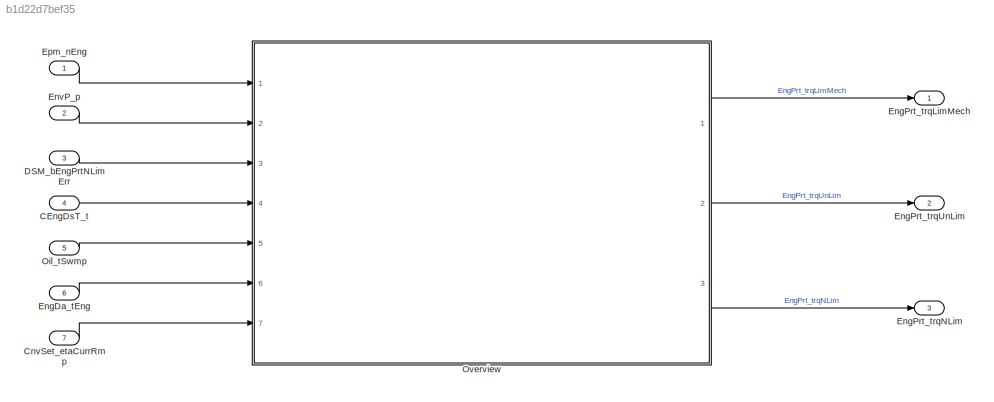
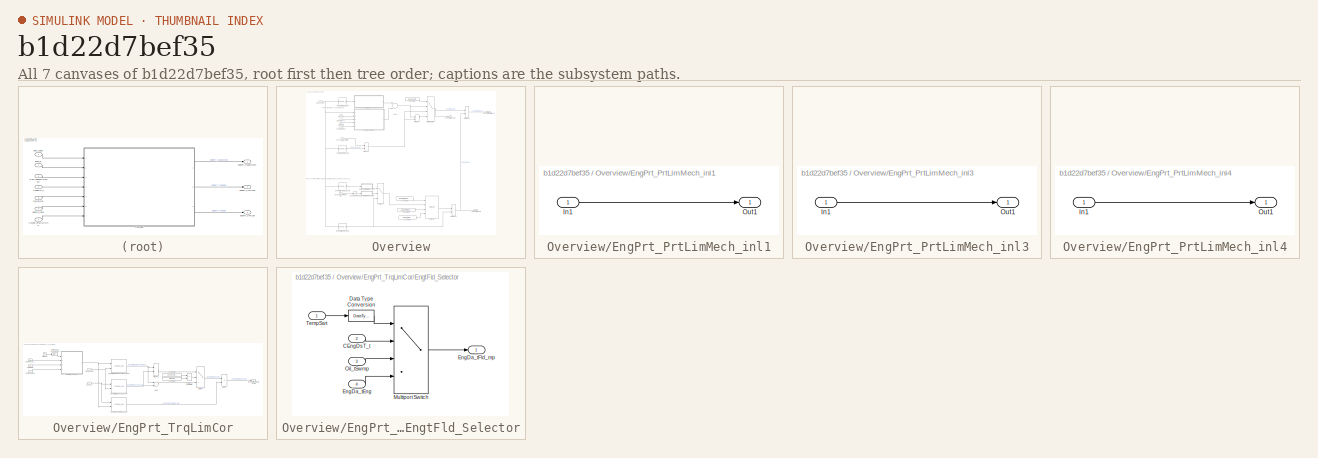
[diagram: thumbnail index - all 7 canvases of the model, root first then tree order]
MODEL slx_b1d22d7bef35
KIND model
CONFIG AbsTol = auto
CONFIG EnableMultiTasking = off
CONFIG FixedStep = 0.001
CONFIG MaxStep = auto
CONFIG MinStep = auto
CONFIG RelTol = 1e-3
CONFIG SampleTimeConstraint = Unconstrained
CONFIG Solver = FixedStepDiscrete
CONFIG SolverName = FixedStepDiscrete
CONFIG StartTime = 0.0
CONFIG StopTime = Inf
WORKSPACE source: MAT-file member
WORKSPACE EngPrt_PrtLimMech_DT = 10
BLOCK [Inport] CEngDsT_t
  Description = engine coolant temperature after filter
  IconDisplay = Port number
  OutDataTypeStr = Temp_C
  OutMax = 200
  OutMin = -200
  Port = 4
  PortDimensions = [1 1]
  Unit = deg
BLOCK [Inport] CnvSet_etaCurrRmp
  Description = Conversion efficiency corresponding to CnvSet_qSet
  IconDisplay = Port number
  OutDataTypeStr = Effcy
  OutMax = 100
  OutMin = 0
  Port = 7
  PortDimensions = [1 1]
  Unit = Nm/(mg/hub)
BLOCK [Inport] DSM_bEngPrtNLimErr
  Description = Activation of additional engine speed limitation
  IconDisplay = Port number
  OutDataTypeStr = boolean
  OutMax = 1
  OutMin = 0
  Port = 3
  PortDimensions = [1 1]
BLOCK [Inport] EngDa_tEng
  Description = Engine temperature
  IconDisplay = Port number
  OutDataTypeStr = Temp_C
  OutMax = 1000
  OutMin = -1000
  Port = 6
  PortDimensions = [1 1]
  Unit = deg
BLOCK [Outport] EngPrt_trqLimMech
  IconDisplay = Port number
BLOCK [Outport] EngPrt_trqNLim
  IconDisplay = Port number
  Port = 3
BLOCK [Outport] EngPrt_trqUnLim
  IconDisplay = Port number
  Port = 2
BLOCK [Inport] EnvP_p
  Description = Barometric pressure
  IconDisplay = Port number
  OutDataTypeStr = Press_kpa
  OutMax = 300
  OutMin = 0
  Port = 2
  PortDimensions = [1 1]
  Unit = kPa
BLOCK [Inport] Epm_nEng
  Description = Engine speed
  IconDisplay = Port number
  OutDataTypeStr = ERPM
  OutMax = 6000
  OutMin = 0
  PortDimensions = [1 1]
  Unit = rpm
BLOCK [Inport] Oil_tSwmp
  Description = Oil temperature in oil sump
  IconDisplay = Port number
  OutDataTypeStr = Temp_C
  OutMax = 200
  OutMin = -50
  Port = 5
  PortDimensions = [1 1]
  Unit = deg
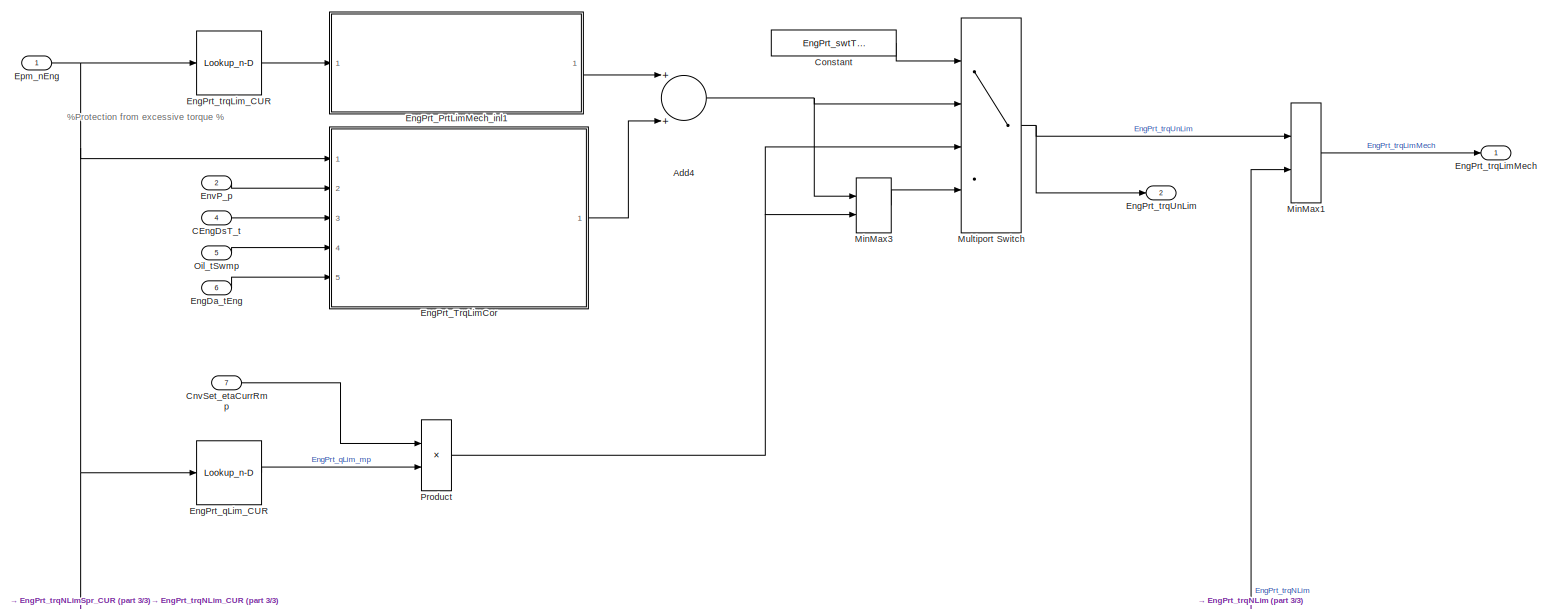
[diagram: Overview - part 1/3, full width, top band]
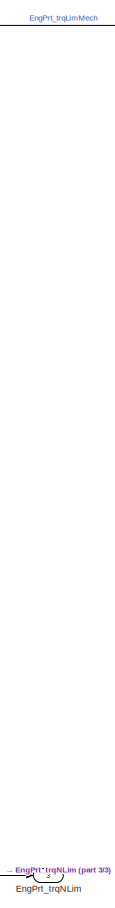
[diagram: Overview - part 2/3, right side, full height]
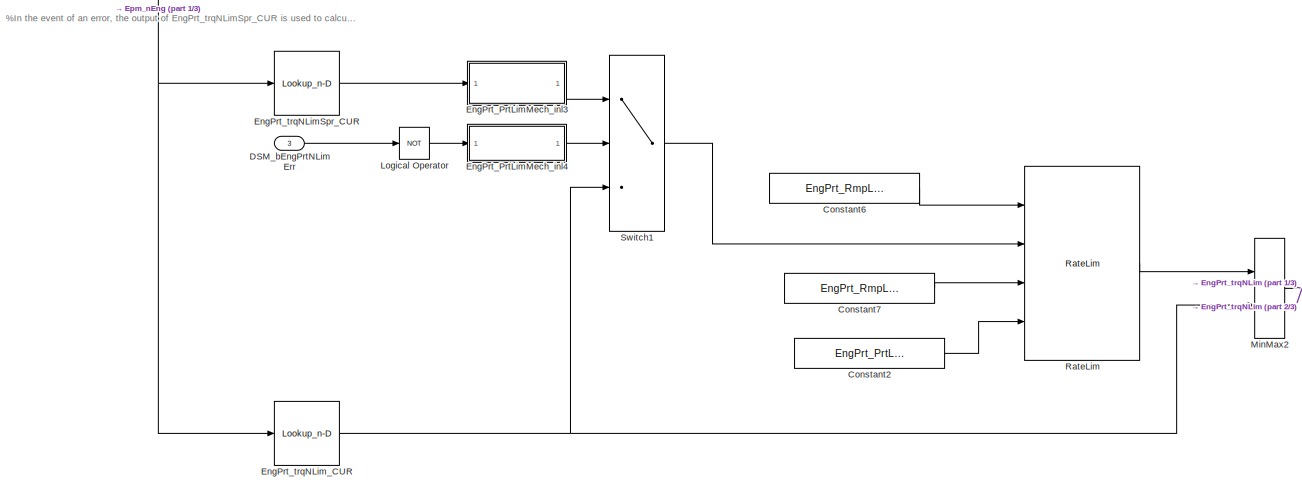
[diagram: Overview - part 3/3, full width, bottom band]
BLOCK [SubSystem] Overview
  Ports = [7, 3]
  RequestExecContextInheritance = off
BLOCK [Sum] Overview/Add4
  OutDataTypeStr = Inherit: Inherit via internal rule
  Ports = [2, 1]
  SaturateOnIntegerOverflow = off
BLOCK [Inport] Overview/CEngDsT_t
  IconDisplay = Port number
  Port = 4
  Tag = deg
BLOCK [Inport] Overview/CnvSet_etaCurrRmp
  IconDisplay = Port number
  Port = 7
  Tag = Nm/(mg/hub)
BLOCK [Constant] Overview/Constant
  Value = EngPrt_swtTrq_C
BLOCK [Constant] Overview/Constant2
  OutDataTypeStr = Inherit: Inherit via back propagation
  Value = EngPrt_PrtLimMech_DT
BLOCK [Constant] Overview/Constant6
  Value = EngPrt_RmpLimNErrPos_C
BLOCK [Constant] Overview/Constant7
  Value = EngPrt_RmpLimNErrNeg_C
BLOCK [Inport] Overview/DSM_bEngPrtNLimErr
  IconDisplay = Port number
  Port = 3
BLOCK [Inport] Overview/EngDa_tEng
  IconDisplay = Port number
  Port = 6
  Tag = deg
BLOCK [SubSystem] Overview/EngPrt_PrtLimMech_inl1
  Ports = [1, 1]
  RequestExecContextInheritance = off
BLOCK [Inport] Overview/EngPrt_PrtLimMech_inl1/In1
  IconDisplay = Port number
BLOCK [Outport] Overview/EngPrt_PrtLimMech_inl1/Out1
  IconDisplay = Port number
BLOCK [SubSystem] Overview/EngPrt_PrtLimMech_inl3
  Ports = [1, 1]
  RequestExecContextInheritance = off
BLOCK [Inport] Overview/EngPrt_PrtLimMech_inl3/In1
  IconDisplay = Port number
BLOCK [Outport] Overview/EngPrt_PrtLimMech_inl3/Out1
  IconDisplay = Port number
BLOCK [SubSystem] Overview/EngPrt_PrtLimMech_inl4
  Ports = [1, 1]
  RequestExecContextInheritance = off
BLOCK [Inport] Overview/EngPrt_PrtLimMech_inl4/In1
  IconDisplay = Port number
BLOCK [Outport] Overview/EngPrt_PrtLimMech_inl4/Out1
  IconDisplay = Port number
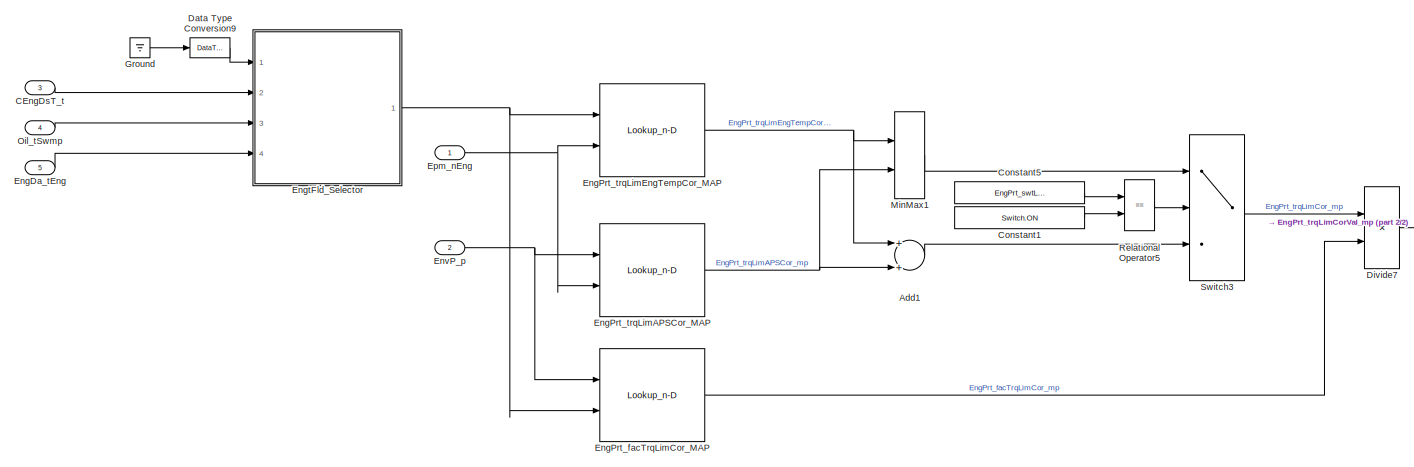
[diagram: Overview/EngPrt_TrqLimCor - part 1/2, most of the canvas]
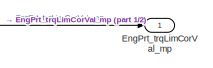
[diagram: Overview/EngPrt_TrqLimCor - part 2/2, middle right region]
BLOCK [SubSystem] Overview/EngPrt_TrqLimCor
  Ports = [5, 1]
  RequestExecContextInheritance = off
BLOCK [Sum] Overview/EngPrt_TrqLimCor/Add1
  OutDataTypeStr = Inherit: Inherit via internal rule
  Ports = [2, 1]
  SaturateOnIntegerOverflow = off
BLOCK [Inport] Overview/EngPrt_TrqLimCor/CEngDsT_t
  IconDisplay = Port number
  Port = 3
  Tag = deg
BLOCK [Constant] Overview/EngPrt_TrqLimCor/Constant1
  OutDataTypeStr = Inherit: Inherit via back propagation
  Value = Switch.ON
BLOCK [Constant] Overview/EngPrt_TrqLimCor/Constant5
  Value = EngPrt_swtLimCorType_C
BLOCK [DataTypeConversion] Overview/EngPrt_TrqLimCor/Data Type Conversion9
  OutDataTypeStr = uint8
  RndMeth = Floor
  SaturateOnIntegerOverflow = off
BLOCK [Product] Overview/EngPrt_TrqLimCor/Divide7
  InputSameDT = off
  Inputs = **
  OutDataTypeStr = Inherit: Inherit via back propagation
  Ports = [2, 1]
  RndMeth = Floor
  SaturateOnIntegerOverflow = off
BLOCK [Inport] Overview/EngPrt_TrqLimCor/EngDa_tEng
  IconDisplay = Port number
  Port = 5
  Tag = deg
BLOCK [Lookup_n-D] Overview/EngPrt_TrqLimCor/EngPrt_facTrqLimCor_MAP
  BeginIndexSearchUsingPreviousIndexResult = on
  BreakpointsForDimension1 = EngPrt_facTrqLimCor_MAPY
  BreakpointsForDimension1DataTypeStr = Inherit: Inherit from 'Breakpoint data'
  BreakpointsForDimension2 = EngPrt_facTrqLimCor_MAPX
  BreakpointsForDimension2DataTypeStr = Inherit: Inherit from 'Breakpoint data'
  DialogController = Simulink.DDGSource
  ExtrapMethod = Clip
  InputSameDT = off
  InternalRulePriority = Speed
  OutDataTypeStr = Inherit: Inherit from 'Table data'
  Ports = [2, 1]
  SaturateOnIntegerOverflow = on
  Table = EngPrt_facTrqLimCor_MAP
  TableDataTypeStr = Inherit: Inherit from 'Table data'
  UseLastTableValue = on
BLOCK [Lookup_n-D] Overview/EngPrt_TrqLimCor/EngPrt_trqLimAPSCor_MAP
  BeginIndexSearchUsingPreviousIndexResult = on
  BreakpointsForDimension1 = EngPrt_trqLimAPSCor_MAPY
  BreakpointsForDimension2 = EngPrt_trqLimAPSCor_MAPX
  DialogController = Simulink.DDGSource
  ExtrapMethod = Clip
  IndexSearchMethod = Linear search
  InputSameDT = off
  InternalRulePriority = Speed
  OutDataTypeStr = Inherit: Inherit via back propagation
  Ports = [2, 1]
  SaturateOnIntegerOverflow = on
  Table = EngPrt_trqLimAPSCor_MAP
  UseLastTableValue = on
BLOCK [Outport] Overview/EngPrt_TrqLimCor/EngPrt_trqLimCorVal_mp
  IconDisplay = Port number
BLOCK [Lookup_n-D] Overview/EngPrt_TrqLimCor/EngPrt_trqLimEngTempCor_MAP
  BeginIndexSearchUsingPreviousIndexResult = on
  BreakpointsForDimension1 = EngPrt_trqLimEngTempCor_MAPY
  BreakpointsForDimension2 = EngPrt_trqLimEngTempCor_MAPX
  DialogController = Simulink.DDGSource
  ExtrapMethod = Clip
  IndexSearchMethod = Linear search
  InputSameDT = off
  InternalRulePriority = Speed
  OutDataTypeStr = Inherit: Inherit via back propagation
  Ports = [2, 1]
  SaturateOnIntegerOverflow = on
  Table = EngPrt_trqLimEngTempCor_MAP
  UseLastTableValue = on
BLOCK [SubSystem] Overview/EngPrt_TrqLimCor/EngtFld_Selector
  Ports = [4, 1]
  RequestExecContextInheritance = off
BLOCK [Inport] Overview/EngPrt_TrqLimCor/EngtFld_Selector/CEngDsT_t
  IconDisplay = Port number
  Port = 2
  Tag = deg
BLOCK [DataTypeConversion] Overview/EngPrt_TrqLimCor/EngtFld_Selector/Data Type Conversion
  OutDataTypeStr = uint8
  RndMeth = Floor
  SaturateOnIntegerOverflow = off
BLOCK [Inport] Overview/EngPrt_TrqLimCor/EngtFld_Selector/EngDa_tEng
  IconDisplay = Port number
  Port = 4
  Tag = deg
BLOCK [Outport] Overview/EngPrt_TrqLimCor/EngtFld_Selector/EngDa_tFld_mp
  IconDisplay = Port number
  Tag = deg
BLOCK [MultiPortSwitch] Overview/EngPrt_TrqLimCor/EngtFld_Selector/Multiport Switch
  DataPortOrder = Zero-based contiguous
  InputSameDT = off
  Ports = [4, 1]
  SaturateOnIntegerOverflow = off
  zeroidx = on
BLOCK [Inport] Overview/EngPrt_TrqLimCor/EngtFld_Selector/Oil_tSwmp
  IconDisplay = Port number
  Port = 3
  Tag = deg
BLOCK [Inport] Overview/EngPrt_TrqLimCor/EngtFld_Selector/TempSwt
  IconDisplay = Port number
BLOCK [Inport] Overview/EngPrt_TrqLimCor/EnvP_p
  IconDisplay = Port number
  Port = 2
BLOCK [Inport] Overview/EngPrt_TrqLimCor/Epm_nEng
  IconDisplay = Port number
BLOCK [Ground] Overview/EngPrt_TrqLimCor/Ground
BLOCK [MinMax] Overview/EngPrt_TrqLimCor/MinMax1
  Function = max
  Inputs = 2
  Ports = [2, 1]
  SaturateOnIntegerOverflow = off
BLOCK [Inport] Overview/EngPrt_TrqLimCor/Oil_tSwmp
  IconDisplay = Port number
  Port = 4
  Tag = deg
BLOCK [RelationalOperator] Overview/EngPrt_TrqLimCor/Relational Operator5
  Operator = ==
  OutDataTypeStr = boolean
  Ports = [2, 1]
  RndMeth = Simplest
BLOCK [Switch] Overview/EngPrt_TrqLimCor/Switch3
  Criteria = u2 ~= 0
  SaturateOnIntegerOverflow = off
BLOCK [Lookup_n-D] Overview/EngPrt_qLim_CUR
  BreakpointsForDimension1 = EngPrt_qLim_CURX
  BreakpointsForDimension2 = [1:3]
  ExtrapMethod = Clip
  IndexSearchMethod = Linear search
  InputSameDT = off
  InternalRulePriority = Speed
  NumberOfTableDimensions = 1
  OutDataTypeStr = Inherit: Inherit via back propagation
  Ports = [1, 1]
  RndMeth = Simplest
  SaturateOnIntegerOverflow = on
  Table = EngPrt_qLim_CUR
BLOCK [Outport] Overview/EngPrt_trqLimMech
  IconDisplay = Port number
  Tag = Nm
BLOCK [Lookup_n-D] Overview/EngPrt_trqLim_CUR
  BreakpointsForDimension1 = EngPrt_trqLim_CURX
  BreakpointsForDimension2 = [1:3]
  ExtrapMethod = Clip
  IndexSearchMethod = Linear search
  InputSameDT = off
  InternalRulePriority = Speed
  NumberOfTableDimensions = 1
  OutDataTypeStr = Inherit: Inherit via back propagation
  Ports = [1, 1]
  RndMeth = Simplest
  SaturateOnIntegerOverflow = on
  Table = EngPrt_trqLim_CUR
BLOCK [Outport] Overview/EngPrt_trqNLim
  IconDisplay = Port number
  Port = 3
  Tag = Nm
BLOCK [Lookup_n-D] Overview/EngPrt_trqNLimSpr_CUR
  BreakpointsForDimension1 = EngPrt_trqNLimSpr_CURX
  BreakpointsForDimension2 = [1:3]
  ExtrapMethod = Clip
  IndexSearchMethod = Linear search
  InputSameDT = off
  InternalRulePriority = Speed
  NumberOfTableDimensions = 1
  OutDataTypeStr = Inherit: Inherit via back propagation
  Ports = [1, 1]
  RndMeth = Simplest
  SaturateOnIntegerOverflow = on
  Table = EngPrt_trqNLimSpr_CUR
BLOCK [Lookup_n-D] Overview/EngPrt_trqNLim_CUR
  BreakpointsForDimension1 = EngPrt_trqNLim_CURX
  BreakpointsForDimension2 = [1:3]
  ExtrapMethod = Clip
  IndexSearchMethod = Linear search
  InputSameDT = off
  InternalRulePriority = Speed
  NumberOfTableDimensions = 1
  OutDataTypeStr = Inherit: Inherit via back propagation
  Ports = [1, 1]
  RndMeth = Simplest
  SaturateOnIntegerOverflow = on
  Table = EngPrt_trqNLim_CUR
BLOCK [Outport] Overview/EngPrt_trqUnLim
  IconDisplay = Port number
  Port = 2
  Tag = Nm
BLOCK [Inport] Overview/EnvP_p
  IconDisplay = Port number
  Port = 2
  Tag = kPa
BLOCK [Inport] Overview/Epm_nEng
  IconDisplay = Port number
  Tag = rpm
BLOCK [Logic] Overview/Logical Operator
  AllPortsSameDT = off
  Operator = NOT
  OutDataTypeStr = boolean
  Ports = [1, 1]
BLOCK [MinMax] Overview/MinMax1
  Inputs = 2
  Ports = [2, 1]
  SaturateOnIntegerOverflow = off
BLOCK [MinMax] Overview/MinMax2
  Inputs = 2
  Ports = [2, 1]
  SaturateOnIntegerOverflow = off
BLOCK [MinMax] Overview/MinMax3
  Inputs = 2
  Ports = [2, 1]
  SaturateOnIntegerOverflow = off
BLOCK [MultiPortSwitch] Overview/Multiport Switch
  DataPortOrder = Zero-based contiguous
  OutDataTypeStr = Inherit: Inherit via back propagation
  Ports = [4, 1]
  SaturateOnIntegerOverflow = off
  zeroidx = on
BLOCK [Inport] Overview/Oil_tSwmp
  IconDisplay = Port number
  Port = 5
  Tag = deg
BLOCK [Product] Overview/Product
  InputSameDT = off
  OutDataTypeStr = Inherit: Inherit via back propagation
  Ports = [2, 1]
  RndMeth = Floor
BLOCK [Reference] Overview/RateLim  REF=sllib/RateLim  (lib defined in slx_2b0aa6d284ff)
  Ports = [4, 1]
  SourceBlock = sllib/RateLim
  SourceProductName = sllib
  SourceType = RateLim
BLOCK [Switch] Overview/Switch1
  Criteria = u2 ~= 0
  SaturateOnIntegerOverflow = off
ANNOTATION Overview: %In the event of an error, the output of EngPrt_trqNLimSpr_CUR is used to calculate EngPrt_trqNLim. %
ANNOTATION Overview: %Protection from excessive torque %
LINE CEngDsT_t:1 -> Overview:4
LINE CnvSet_etaCurrRmp:1 -> Overview:7
LINE DSM_bEngPrtNLimErr:1 -> Overview:3
LINE EngDa_tEng:1 -> Overview:6
LINE EnvP_p:1 -> Overview:2
LINE Epm_nEng:1 -> Overview:1
LINE Oil_tSwmp:1 -> Overview:5
NET Overview/Add4:1 -> Overview/MinMax3:1, Overview/Multiport Switch:2
LINE Overview/CEngDsT_t:1 -> Overview/EngPrt_TrqLimCor:3
LINE Overview/CnvSet_etaCurrRmp:1 -> Overview/Product:1
LINE Overview/Constant2:1 -> Overview/RateLim:4
LINE Overview/Constant6:1 -> Overview/RateLim:1
LINE Overview/Constant7:1 -> Overview/RateLim:3
LINE Overview/Constant:1 -> Overview/Multiport Switch:1
LINE Overview/DSM_bEngPrtNLimErr:1 -> Overview/Logical Operator:1
LINE Overview/EngDa_tEng:1 -> Overview/EngPrt_TrqLimCor:5
LINE Overview/EngPrt_PrtLimMech_inl1/In1:1 -> Overview/EngPrt_PrtLimMech_inl1/Out1:1
LINE Overview/EngPrt_PrtLimMech_inl1:1 -> Overview/Add4:1
LINE Overview/EngPrt_PrtLimMech_inl3/In1:1 -> Overview/EngPrt_PrtLimMech_inl3/Out1:1
LINE Overview/EngPrt_PrtLimMech_inl3:1 -> Overview/Switch1:1
LINE Overview/EngPrt_PrtLimMech_inl4/In1:1 -> Overview/EngPrt_PrtLimMech_inl4/Out1:1
LINE Overview/EngPrt_PrtLimMech_inl4:1 -> Overview/Switch1:2
LINE Overview/EngPrt_TrqLimCor/Add1:1 -> Overview/EngPrt_TrqLimCor/Switch3:3
LINE Overview/EngPrt_TrqLimCor/CEngDsT_t:1 -> Overview/EngPrt_TrqLimCor/EngtFld_Selector:2
LINE Overview/EngPrt_TrqLimCor/Constant1:1 -> Overview/EngPrt_TrqLimCor/Relational Operator5:2
LINE Overview/EngPrt_TrqLimCor/Constant5:1 -> Overview/EngPrt_TrqLimCor/Relational Operator5:1
LINE Overview/EngPrt_TrqLimCor/Data Type Conversion9:1 -> Overview/EngPrt_TrqLimCor/EngtFld_Selector:1
LINE Overview/EngPrt_TrqLimCor/Divide7:1 -> Overview/EngPrt_TrqLimCor/EngPrt_trqLimCorVal_mp:1
LINE Overview/EngPrt_TrqLimCor/EngDa_tEng:1 -> Overview/EngPrt_TrqLimCor/EngtFld_Selector:4
LINE Overview/EngPrt_TrqLimCor/EngPrt_facTrqLimCor_MAP:1 -> Overview/EngPrt_TrqLimCor/Divide7:2
NET Overview/EngPrt_TrqLimCor/EngPrt_trqLimAPSCor_MAP:1 -> Overview/EngPrt_TrqLimCor/Add1:2, Overview/EngPrt_TrqLimCor/MinMax1:2
NET Overview/EngPrt_TrqLimCor/EngPrt_trqLimEngTempCor_MAP:1 -> Overview/EngPrt_TrqLimCor/Add1:1, Overview/EngPrt_TrqLimCor/MinMax1:1
LINE Overview/EngPrt_TrqLimCor/EngtFld_Selector/CEngDsT_t:1 -> Overview/EngPrt_TrqLimCor/EngtFld_Selector/Multiport Switch:2
LINE Overview/EngPrt_TrqLimCor/EngtFld_Selector/Data Type Conversion:1 -> Overview/EngPrt_TrqLimCor/EngtFld_Selector/Multiport Switch:1
LINE Overview/EngPrt_TrqLimCor/EngtFld_Selector/EngDa_tEng:1 -> Overview/EngPrt_TrqLimCor/EngtFld_Selector/Multiport Switch:4
LINE Overview/EngPrt_TrqLimCor/EngtFld_Selector/Multiport Switch:1 -> Overview/EngPrt_TrqLimCor/EngtFld_Selector/EngDa_tFld_mp:1
LINE Overview/EngPrt_TrqLimCor/EngtFld_Selector/Oil_tSwmp:1 -> Overview/EngPrt_TrqLimCor/EngtFld_Selector/Multiport Switch:3
LINE Overview/EngPrt_TrqLimCor/EngtFld_Selector/TempSwt:1 -> Overview/EngPrt_TrqLimCor/EngtFld_Selector/Data Type Conversion:1
NET Overview/EngPrt_TrqLimCor/EngtFld_Selector:1 -> Overview/EngPrt_TrqLimCor/EngPrt_facTrqLimCor_MAP:2, Overview/EngPrt_TrqLimCor/EngPrt_trqLimEngTempCor_MAP:1
NET Overview/EngPrt_TrqLimCor/EnvP_p:1 -> Overview/EngPrt_TrqLimCor/EngPrt_facTrqLimCor_MAP:1, Overview/EngPrt_TrqLimCor/EngPrt_trqLimAPSCor_MAP:1
NET Overview/EngPrt_TrqLimCor/Epm_nEng:1 -> Overview/EngPrt_TrqLimCor/EngPrt_trqLimAPSCor_MAP:2, Overview/EngPrt_TrqLimCor/EngPrt_trqLimEngTempCor_MAP:2
LINE Overview/EngPrt_TrqLimCor/Ground:1 -> Overview/EngPrt_TrqLimCor/Data Type Conversion9:1
LINE Overview/EngPrt_TrqLimCor/MinMax1:1 -> Overview/EngPrt_TrqLimCor/Switch3:1
LINE Overview/EngPrt_TrqLimCor/Oil_tSwmp:1 -> Overview/EngPrt_TrqLimCor/EngtFld_Selector:3
LINE Overview/EngPrt_TrqLimCor/Relational Operator5:1 -> Overview/EngPrt_TrqLimCor/Switch3:2
LINE Overview/EngPrt_TrqLimCor/Switch3:1 -> Overview/EngPrt_TrqLimCor/Divide7:1
LINE Overview/EngPrt_TrqLimCor:1 -> Overview/Add4:2
LINE Overview/EngPrt_qLim_CUR:1 -> Overview/Product:2
LINE Overview/EngPrt_trqLim_CUR:1 -> Overview/EngPrt_PrtLimMech_inl1:1
LINE Overview/EngPrt_trqNLimSpr_CUR:1 -> Overview/EngPrt_PrtLimMech_inl3:1
NET Overview/EngPrt_trqNLim_CUR:1 -> Overview/MinMax2:2, Overview/Switch1:3
LINE Overview/EnvP_p:1 -> Overview/EngPrt_TrqLimCor:2
NET Overview/Epm_nEng:1 -> Overview/EngPrt_TrqLimCor:1, Overview/EngPrt_qLim_CUR:1, Overview/EngPrt_trqLim_CUR:1, Overview/EngPrt_trqNLimSpr_CUR:1, Overview/EngPrt_trqNLim_CUR:1
LINE Overview/Logical Operator:1 -> Overview/EngPrt_PrtLimMech_inl4:1
LINE Overview/MinMax1:1 -> Overview/EngPrt_trqLimMech:1
NET Overview/MinMax2:1 -> Overview/EngPrt_trqNLim:1, Overview/MinMax1:2
LINE Overview/MinMax3:1 -> Overview/Multiport Switch:4
NET Overview/Multiport Switch:1 -> Overview/EngPrt_trqUnLim:1, Overview/MinMax1:1
LINE Overview/Oil_tSwmp:1 -> Overview/EngPrt_TrqLimCor:4
NET Overview/Product:1 -> Overview/MinMax3:2, Overview/Multiport Switch:3
LINE Overview/RateLim:1 -> Overview/MinMax2:1
LINE Overview/Switch1:1 -> Overview/RateLim:2
LINE Overview:1 -> EngPrt_trqLimMech:1
LINE Overview:2 -> EngPrt_trqUnLim:1
LINE Overview:3 -> EngPrt_trqNLim:1
note: NET lines group one-source signal fan-out (src -> all destinations, sorted); 1:1 wires keep LINE
